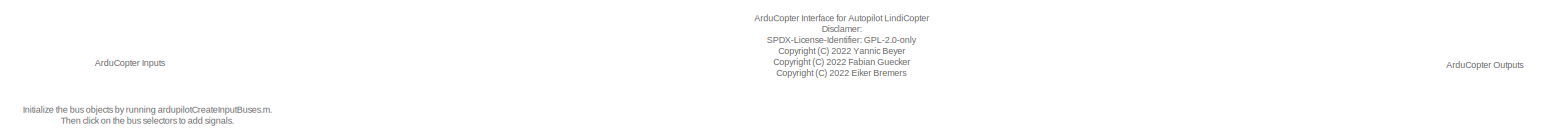
[diagram: root canvas - part 1/3, full width, top band]
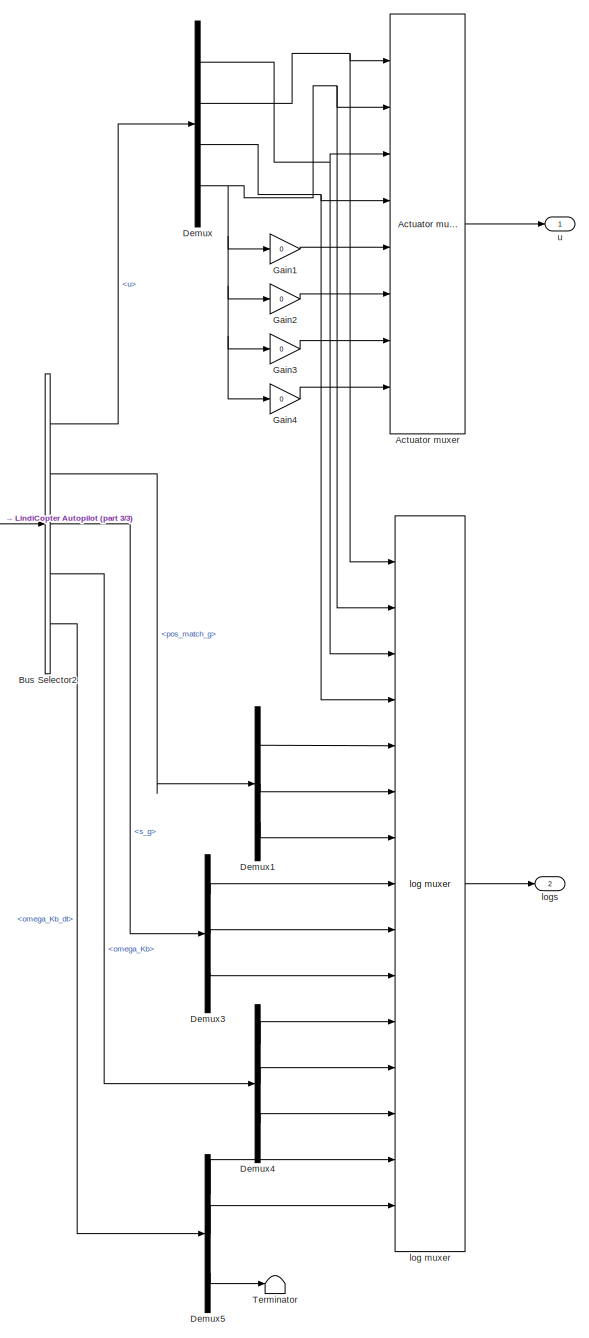
[diagram: root canvas - part 2/3, right side, full height]
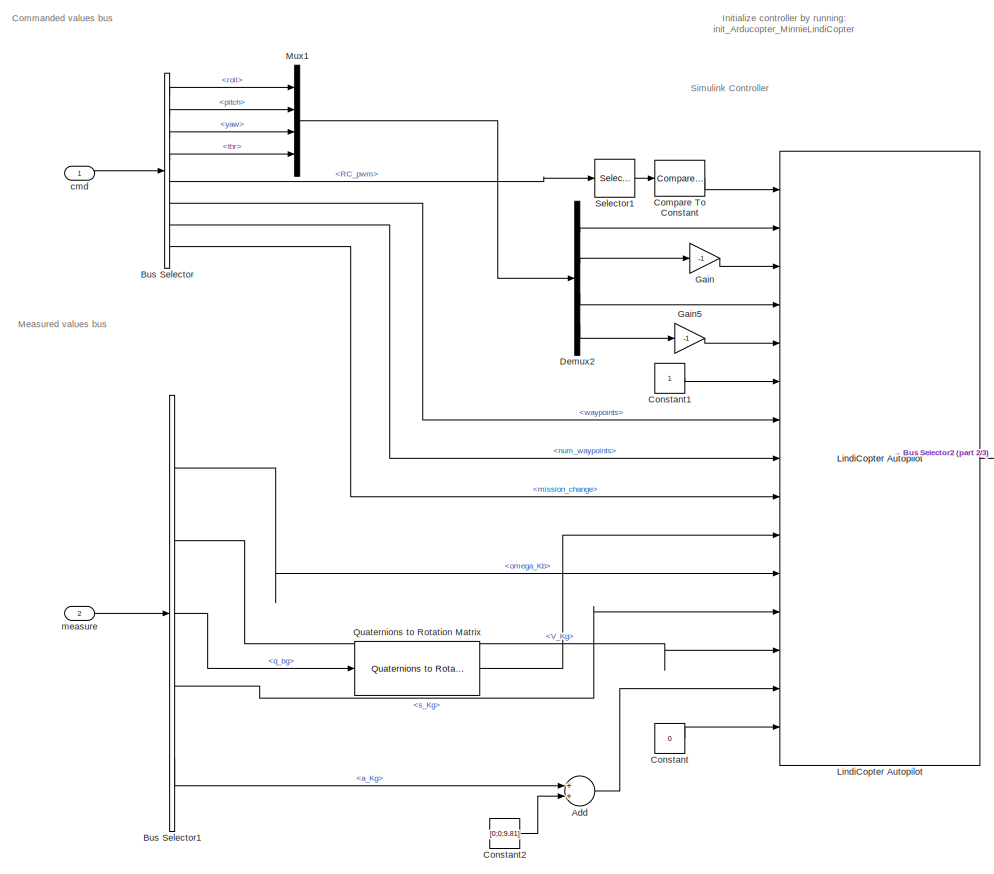
[diagram: root canvas - part 3/3, central region]
MODEL slx_23164af634ea
KIND model
CONFIG AbsTol = auto
CONFIG EnableMultiTasking = on
CONFIG FixedStep = 0.01
CONFIG MaxStep = auto
CONFIG MinStep = auto
CONFIG RelTol = 1e-4
CONFIG SampleTimeConstraint = Unconstrained
CONFIG Solver = FixedStepAuto
CONFIG SolverName = FixedStepAuto
CONFIG StartTime = 0.0
CONFIG StopTime = 1000
BLOCK [Reference] Actuator muxer  REF=ardupilot_custom_controller_lib/Actuator muxer  (lib defined in slx_bbc4fb9a1307)
  Ports = [8, 1]
  SourceBlock = ardupilot_custom_controller_lib/Actuator muxer
  SourceProductName = LADAC
BLOCK [Sum] Add
  InputSameDT = off
  OutDataTypeStr = Inherit: Inherit via internal rule
  Ports = [2, 1]
  SaturateOnIntegerOverflow = off
BLOCK [BusSelector] Bus Selector
  OutputAsBus = off
  OutputSignals = roll,pitch,yaw,thr,RC_pwm,waypoints,num_waypoints,mission_change
  Ports = [1, 8]
BLOCK [BusSelector] Bus Selector1
  OutputAsBus = off
  OutputSignals = omega_Kb,V_Kg,q_bg,s_Kg,a_Kg
  Ports = [1, 5]
BLOCK [BusSelector] Bus Selector2
  OutputAsBus = off
  OutputSignals = inner_loop_indi.u,guidance.matching.pos_match_g,pos_cntrl.measure.s_g,atti_cntrl.measure.omega_Kb,atti_cntrl.measure.omega_Kb_dt
  Ports = [1, 5]
BLOCK [Reference] Compare To Constant  REF=simulink/Logic and Bit
Operations/Compare
To Constant
  Ports = [1, 1]
  SourceBlock = simulink/Logic and Bit\nOperations/Compare\nTo Constant
  SourceProductBaseCode = SL
  SourceProductName = Simulink
  SourceType = Compare To Constant
BLOCK [Constant] Constant
  Value = 0
BLOCK [Constant] Constant1
BLOCK [Constant] Constant2
  OutDataTypeStr = Inherit: Inherit via back propagation
  Value = [0;0;9.81]
BLOCK [Demux] Demux
  DisplayOption = bar
  Ports = [1, 4]
BLOCK [Demux] Demux1
  DisplayOption = bar
  Outputs = 3
  Ports = [1, 3]
BLOCK [Demux] Demux2
  DisplayOption = bar
  Ports = [1, 4]
BLOCK [Demux] Demux3
  DisplayOption = bar
  Outputs = 3
  Ports = [1, 3]
BLOCK [Demux] Demux4
  DisplayOption = bar
  Outputs = 3
  Ports = [1, 3]
BLOCK [Demux] Demux5
  DisplayOption = bar
  Outputs = 3
  Ports = [1, 3]
BLOCK [Gain] Gain
  Gain = -1
  OutDataTypeStr = Inherit: Inherit via internal rule
  ParamDataTypeStr = Inherit: Inherit via internal rule
  SaturateOnIntegerOverflow = off
BLOCK [Gain] Gain1
  Gain = 0
  OutDataTypeStr = Inherit: Inherit via internal rule
  ParamDataTypeStr = Inherit: Inherit via internal rule
  SaturateOnIntegerOverflow = off
BLOCK [Gain] Gain2
  Gain = 0
  OutDataTypeStr = Inherit: Inherit via internal rule
  ParamDataTypeStr = Inherit: Inherit via internal rule
  SaturateOnIntegerOverflow = off
BLOCK [Gain] Gain3
  Gain = 0
  OutDataTypeStr = Inherit: Inherit via internal rule
  ParamDataTypeStr = Inherit: Inherit via internal rule
  SaturateOnIntegerOverflow = off
BLOCK [Gain] Gain4
  Gain = 0
  OutDataTypeStr = Inherit: Inherit via internal rule
  ParamDataTypeStr = Inherit: Inherit via internal rule
  SaturateOnIntegerOverflow = off
BLOCK [Gain] Gain5
  Gain = -1
  OutDataTypeStr = Inherit: Inherit via internal rule
  ParamDataTypeStr = Inherit: Inherit via internal rule
  SaturateOnIntegerOverflow = off
BLOCK [Reference] LindiCopter Autopilot  REF=lindiCopter_lib/LindiCopter Autopilot
  Ports = [15, 1]
  SourceBlock = lindiCopter_lib/LindiCopter Autopilot
  SourceProductName = LADAC
BLOCK [Mux] Mux1
  DisplayOption = bar
  Ports = [4, 1]
BLOCK [Reference] Quaternions to Rotation Matrix  REF=axes_transformation_lib/Quaternions to Rotation Matrix  (lib defined in slx_69e2413c78c0)
  Ports = [1, 1]
  SourceBlock = axes_transformation_lib/Quaternions to Rotation Matrix
  SourceProductName = LADAC
  SourceType = SubSystem
BLOCK [Selector] Selector1
  IndexOptions = Index vector (dialog)
  Indices = 7
  InputPortWidth = 16
  OutputSizes = 1
  Ports = [1, 1]
BLOCK [Terminator] Terminator
BLOCK [Inport] cmd
  IconDisplay = Port number
  OutDataTypeStr = Bus: cmdBus
BLOCK [Reference] log muxer  REF=ardupilot_custom_controller_lib/log muxer  (lib defined in slx_bbc4fb9a1307)
  Ports = [15, 1]
  SourceBlock = ardupilot_custom_controller_lib/log muxer
  SourceProductName = LADAC
BLOCK [Outport] logs
  IconDisplay = Port number
  Port = 2
BLOCK [Inport] measure
  IconDisplay = Port number
  OutDataTypeStr = Bus: measureBus
  Port = 2
BLOCK [Outport] u
  IconDisplay = Port number
ANNOTATION (root): ArduCopter Inputs
ANNOTATION (root): ArduCopter Outputs
ANNOTATION (root): Simulink Controller
ANNOTATION (root): ArduCopter Interface for Autopilot LindiCopter Disclamer: SPDX-License-Identifier: GPL-2.0-only <copyright redacted>
ANNOTATION (root): Commanded values bus
ANNOTATION (root): Measured values bus
ANNOTATION (root): Initialize controller by running: init_Arducopter_MinnieLindiCopter
ANNOTATION (root): Initialize the bus objects by running ardupilotCreateInputBuses.m. Then click on the bus selectors to add signals.
LINE Actuator muxer:1 -> u:1
LINE Add:1 -> LindiCopter Autopilot:14
LINE Bus Selector1:1 -> LindiCopter Autopilot:11
LINE Bus Selector1:2 -> LindiCopter Autopilot:13
LINE Bus Selector1:3 -> Quaternions to Rotation Matrix:1
LINE Bus Selector1:4 -> LindiCopter Autopilot:12
LINE Bus Selector1:5 -> Add:1
LINE Bus Selector2:1 -> Demux:1
LINE Bus Selector2:2 -> Demux1:1
LINE Bus Selector2:3 -> Demux3:1
LINE Bus Selector2:4 -> Demux4:1
LINE Bus Selector2:5 -> Demux5:1
LINE Bus Selector:1 -> Mux1:1
LINE Bus Selector:2 -> Mux1:2
LINE Bus Selector:3 -> Mux1:3
LINE Bus Selector:4 -> Mux1:4
LINE Bus Selector:5 -> Selector1:1
LINE Bus Selector:6 -> LindiCopter Autopilot:7
LINE Bus Selector:7 -> LindiCopter Autopilot:8
LINE Bus Selector:8 -> LindiCopter Autopilot:9
LINE Compare To Constant:1 -> LindiCopter Autopilot:1
LINE Constant1:1 -> LindiCopter Autopilot:6
LINE Constant2:1 -> Add:2
LINE Constant:1 -> LindiCopter Autopilot:15
LINE Demux1:1 -> log muxer:5
LINE Demux1:2 -> log muxer:6
LINE Demux1:3 -> log muxer:7
LINE Demux2:1 -> LindiCopter Autopilot:2
LINE Demux2:2 -> Gain:1
LINE Demux2:3 -> LindiCopter Autopilot:4
LINE Demux2:4 -> Gain5:1
LINE Demux3:1 -> log muxer:8
LINE Demux3:2 -> log muxer:9
LINE Demux3:3 -> log muxer:10
LINE Demux4:1 -> log muxer:11
LINE Demux4:2 -> log muxer:12
LINE Demux4:3 -> log muxer:13
LINE Demux5:1 -> log muxer:14
LINE Demux5:2 -> log muxer:15
LINE Demux5:3 -> Terminator:1
NET Demux:1 -> Actuator muxer:3, log muxer:3
NET Demux:2 -> Actuator muxer:1, log muxer:1
NET Demux:3 -> Actuator muxer:4, log muxer:4
NET Demux:4 -> Actuator muxer:2, Gain1:1, Gain2:1, Gain3:1, Gain4:1, log muxer:2
LINE Gain1:1 -> Actuator muxer:5
LINE Gain2:1 -> Actuator muxer:6
LINE Gain3:1 -> Actuator muxer:7
LINE Gain4:1 -> Actuator muxer:8
LINE Gain5:1 -> LindiCopter Autopilot:5
LINE Gain:1 -> LindiCopter Autopilot:3
LINE LindiCopter Autopilot:1 -> Bus Selector2:1
LINE Mux1:1 -> Demux2:1
LINE Quaternions to Rotation Matrix:1 -> LindiCopter Autopilot:10
LINE Selector1:1 -> Compare To Constant:1
LINE cmd:1 -> Bus Selector:1
LINE log muxer:1 -> logs:1
LINE measure:1 -> Bus Selector1:1
note: NET lines group one-source signal fan-out (src -> all destinations, sorted); 1:1 wires keep LINE
